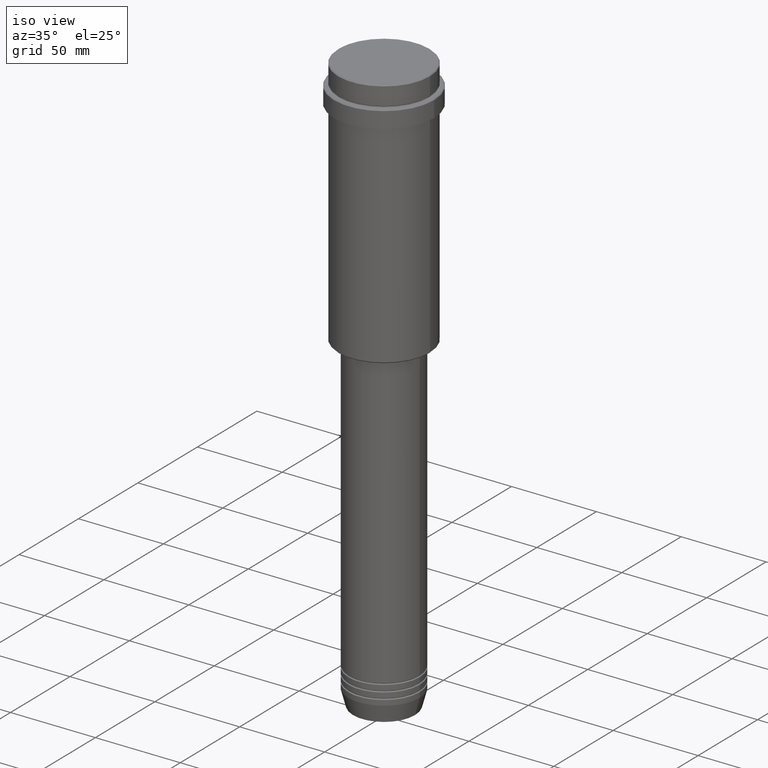
[diagram: clean part render]
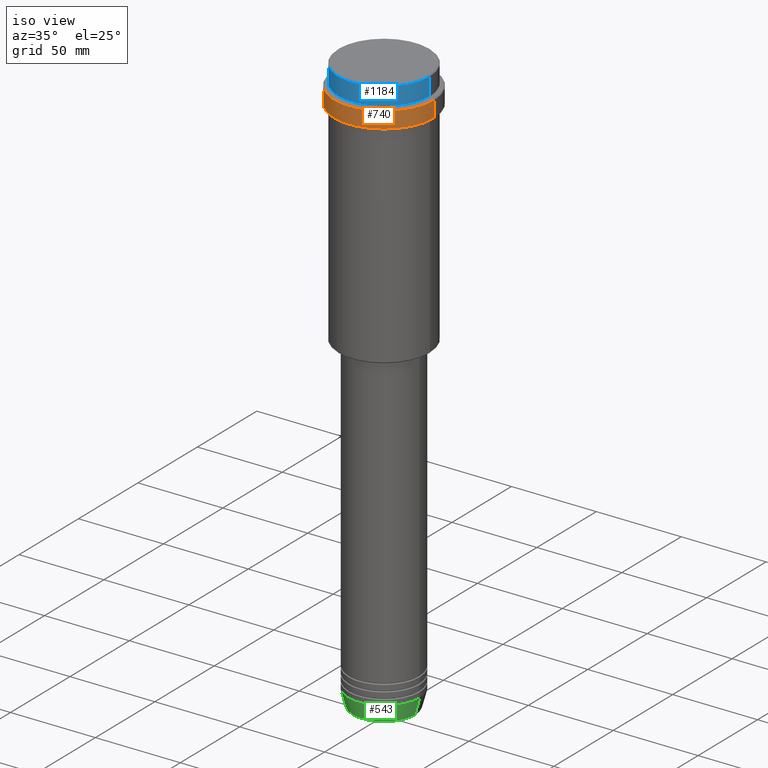
[diagram: same view with three faces highlighted in distinct colors, each labeled with its STEP entity id]
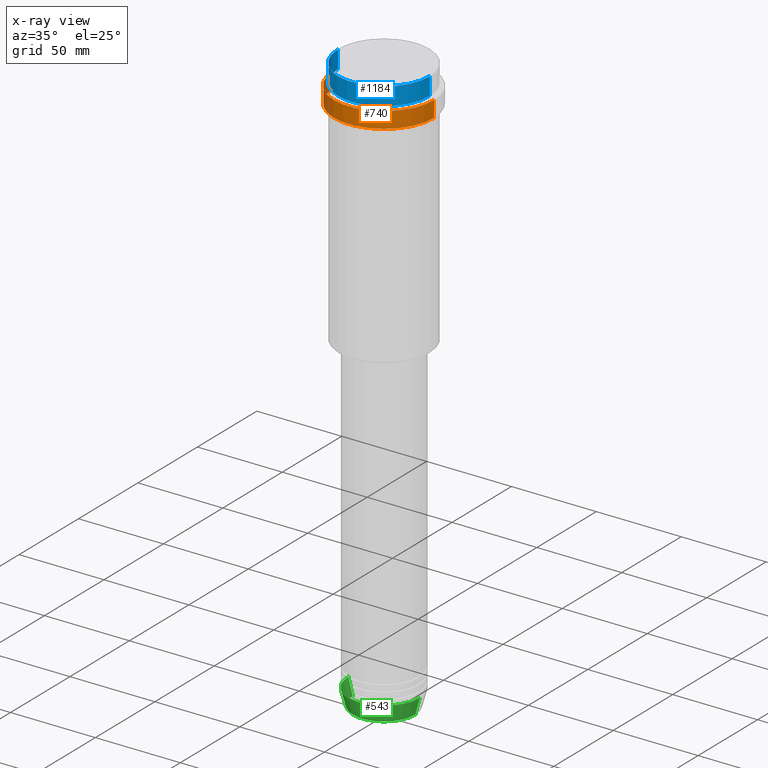
[diagram: x-ray of the same camera — body ghosted, the three highlighted faces saturated]
A machine part, iso view with three faces highlighted in distinct colors.
The next image is the same camera in x-ray (body ghosted, the three faces saturated) — at least one of them is partly hidden behind the body in this view.
Their STEP definitions:

[orange] entity #740 — the highlighted cylindrical surface (partial cylindrical patch) has radius 29.5 mm, axis along (-0, -0, 1).
#77 = DIRECTION ( 'NONE',  ( -0.000000000000000000, -0.000000000000000000, 1.000000000000000000 ) ) ;
#101 = EDGE_CURVE ( 'NONE', #205, #1254, #1217, .T. ) ;
#127 = ORIENTED_EDGE ( 'NONE', *, *, #511, .F. ) ;
#180 = ORIENTED_EDGE ( 'NONE', *, *, #101, .T. ) ;
#182 = CARTESIAN_POINT ( 'NONE',  ( 0.000000000000000000, 0.000000000000000000, 0.000000000000000000 ) ) ;
#205 = VERTEX_POINT ( 'NONE', #729 ) ;
#212 = AXIS2_PLACEMENT_3D ( 'NONE', #697, #999, #689 ) ;
#255 = VECTOR ( 'NONE', #536, 1000.000000000000000 ) ;
#263 = DIRECTION ( 'NONE',  ( -0.000000000000000000, -0.000000000000000000, 1.000000000000000000 ) ) ;
#289 = DIRECTION ( 'NONE',  ( -0.000000000000000000, -0.000000000000000000, 1.000000000000000000 ) ) ;
#297 = CARTESIAN_POINT ( 'NONE',  ( 29.50000000000000000, 0.000000000000000000, 0.000000000000000000 ) ) ;
#373 = VECTOR ( 'NONE', #289, 1000.000000000000000 ) ;
#383 = EDGE_CURVE ( 'NONE', #1197, #820, #568, .T. ) ;
#387 = DIRECTION ( 'NONE',  ( 1.000000000000000000, 0.000000000000000000, 0.000000000000000000 ) ) ;
#394 = CARTESIAN_POINT ( 'NONE',  ( -29.50000000000000000, 3.612708057484691604E-15, -12.50000000000000355 ) ) ;
#414 = CARTESIAN_POINT ( 'NONE',  ( -29.50000000000000000, 3.612708057484691604E-15, 0.000000000000000000 ) ) ;
#470 = CARTESIAN_POINT ( 'NONE',  ( 29.50000000000000000, 0.000000000000000000, -12.50000000000000355 ) ) ;
#486 = FACE_OUTER_BOUND ( 'NONE', #889, .T. ) ;
#511 = EDGE_CURVE ( 'NONE', #205, #820, #766, .T. ) ;
#512 = LINE ( 'NONE', #297, #373 ) ;
#536 = DIRECTION ( 'NONE',  ( -0.000000000000000000, -0.000000000000000000, 1.000000000000000000 ) ) ;
#568 = CIRCLE ( 'NONE', #212, 29.50000000000000000 ) ;
#689 = DIRECTION ( 'NONE',  ( 1.000000000000000000, 0.000000000000000000, 0.000000000000000000 ) ) ;
#697 = CARTESIAN_POINT ( 'NONE',  ( 0.000000000000000000, 0.000000000000000000, -12.50000000000000355 ) ) ;
#729 = CARTESIAN_POINT ( 'NONE',  ( -29.49999999999999645, 3.612708057484690815E-15, -22.00000000000000711 ) ) ;
#730 = AXIS2_PLACEMENT_3D ( 'NONE', #1054, #77, #944 ) ;
#740 = ADVANCED_FACE ( 'NONE', ( #486 ), #1037, .T. ) ;
#766 = LINE ( 'NONE', #414, #255 ) ;
#820 = VERTEX_POINT ( 'NONE', #394 ) ;
#889 = EDGE_LOOP ( 'NONE', ( #127, #180, #1008, #1208 ) ) ;
#941 = AXIS2_PLACEMENT_3D ( 'NONE', #182, #263, #387 ) ;
#944 = DIRECTION ( 'NONE',  ( 1.000000000000000000, 0.000000000000000000, 0.000000000000000000 ) ) ;
#990 = EDGE_CURVE ( 'NONE', #1254, #1197, #512, .T. ) ;
#999 = DIRECTION ( 'NONE',  ( 0.000000000000000000, 0.000000000000000000, -1.000000000000000000 ) ) ;
#1008 = ORIENTED_EDGE ( 'NONE', *, *, #990, .T. ) ;
#1037 = CYLINDRICAL_SURFACE ( 'NONE', #941, 29.50000000000000000 ) ;
#1054 = CARTESIAN_POINT ( 'NONE',  ( 0.000000000000000000, 0.000000000000000000, -22.00000000000000711 ) ) ;
#1140 = CARTESIAN_POINT ( 'NONE',  ( 29.49999999999999645, 0.000000000000000000, -22.00000000000000711 ) ) ;
#1197 = VERTEX_POINT ( 'NONE', #470 ) ;
#1208 = ORIENTED_EDGE ( 'NONE', *, *, #383, .T. ) ;
#1217 = CIRCLE ( 'NONE', #730, 29.49999999999999645 ) ;
#1254 = VERTEX_POINT ( 'NONE', #1140 ) ;

[blue] entity #1184 — the highlighted cylindrical surface (partial cylindrical patch) has radius 27 mm, axis along (-0, -0, 1).
#66 = VECTOR ( 'NONE', #187, 1000.000000000000000 ) ;
#146 = ORIENTED_EDGE ( 'NONE', *, *, #186, .F. ) ;
#184 = CARTESIAN_POINT ( 'NONE',  ( -27.00000000000000355, 3.306546357697854128E-15, -11.00000000000000178 ) ) ;
#186 = EDGE_CURVE ( 'NONE', #244, #1226, #684, .T. ) ;
#187 = DIRECTION ( 'NONE',  ( -0.000000000000000000, -0.000000000000000000, 1.000000000000000000 ) ) ;
#200 = CARTESIAN_POINT ( 'NONE',  ( 27.00000000000000355, 0.000000000000000000, 0.000000000000000000 ) ) ;
#244 = VERTEX_POINT ( 'NONE', #184 ) ;
#286 = ORIENTED_EDGE ( 'NONE', *, *, #500, .T. ) ;
#305 = EDGE_LOOP ( 'NONE', ( #146, #286, #842, #515 ) ) ;
#329 = EDGE_CURVE ( 'NONE', #702, #1226, #823, .T. ) ;
#339 = CYLINDRICAL_SURFACE ( 'NONE', #1068, 27.00000000000000355 ) ;
#349 = FACE_OUTER_BOUND ( 'NONE', #305, .T. ) ;
#399 = DIRECTION ( 'NONE',  ( 0.000000000000000000, 0.000000000000000000, -1.000000000000000000 ) ) ;
#477 = CARTESIAN_POINT ( 'NONE',  ( 27.00000000000000355, 0.000000000000000000, -11.00000000000000178 ) ) ;
#500 = EDGE_CURVE ( 'NONE', #244, #1231, #806, .T. ) ;
#515 = ORIENTED_EDGE ( 'NONE', *, *, #329, .T. ) ;
#580 = DIRECTION ( 'NONE',  ( -0.000000000000000000, -0.000000000000000000, 1.000000000000000000 ) ) ;
#675 = CARTESIAN_POINT ( 'NONE',  ( 0.000000000000000000, 0.000000000000000000, 0.000000000000000000 ) ) ;
#684 = LINE ( 'NONE', #804, #1377 ) ;
#702 = VERTEX_POINT ( 'NONE', #1229 ) ;
#716 = DIRECTION ( 'NONE',  ( 1.000000000000000000, 0.000000000000000000, 0.000000000000000000 ) ) ;
#804 = CARTESIAN_POINT ( 'NONE',  ( -27.00000000000000355, 3.306546357697854128E-15, 0.000000000000000000 ) ) ;
#806 = CIRCLE ( 'NONE', #825, 27.00000000000000355 ) ;
#823 = CIRCLE ( 'NONE', #1378, 27.00000000000000355 ) ;
#825 = AXIS2_PLACEMENT_3D ( 'NONE', #1094, #1206, #841 ) ;
#841 = DIRECTION ( 'NONE',  ( 1.000000000000000000, 0.000000000000000000, 0.000000000000000000 ) ) ;
#842 = ORIENTED_EDGE ( 'NONE', *, *, #1394, .T. ) ;
#879 = DIRECTION ( 'NONE',  ( -0.000000000000000000, -0.000000000000000000, 1.000000000000000000 ) ) ;
#1052 = LINE ( 'NONE', #200, #66 ) ;
#1068 = AXIS2_PLACEMENT_3D ( 'NONE', #675, #879, #1219 ) ;
#1094 = CARTESIAN_POINT ( 'NONE',  ( 0.000000000000000000, 0.000000000000000000, -11.00000000000000178 ) ) ;
#1184 = ADVANCED_FACE ( 'NONE', ( #349 ), #339, .T. ) ;
#1206 = DIRECTION ( 'NONE',  ( -0.000000000000000000, -0.000000000000000000, 1.000000000000000000 ) ) ;
#1219 = DIRECTION ( 'NONE',  ( 1.000000000000000000, 0.000000000000000000, 0.000000000000000000 ) ) ;
#1226 = VERTEX_POINT ( 'NONE', #1240 ) ;
#1229 = CARTESIAN_POINT ( 'NONE',  ( 27.00000000000000355, 0.000000000000000000, -0.4999999999999241163 ) ) ;
#1231 = VERTEX_POINT ( 'NONE', #477 ) ;
#1238 = CARTESIAN_POINT ( 'NONE',  ( 0.000000000000000000, 0.000000000000000000, -0.4999999999999241163 ) ) ;
#1240 = CARTESIAN_POINT ( 'NONE',  ( -27.00000000000000355, 3.306546357697854128E-15, -0.4999999999999241163 ) ) ;
#1377 = VECTOR ( 'NONE', #580, 1000.000000000000000 ) ;
#1378 = AXIS2_PLACEMENT_3D ( 'NONE', #1238, #399, #716 ) ;
#1394 = EDGE_CURVE ( 'NONE', #1231, #702, #1052, .T. ) ;

[green] entity #543 — the highlighted conical surface has half-angle 15 deg.
#4 = VERTEX_POINT ( 'NONE', #1080 ) ;
#5 = DIRECTION ( 'NONE',  ( -0.000000000000000000, -0.000000000000000000, 1.000000000000000000 ) ) ;
#38 = AXIS2_PLACEMENT_3D ( 'NONE', #1348, #604, #808 ) ;
#52 = CARTESIAN_POINT ( 'NONE',  ( 21.00000000000000000, 0.000000000000000000, -333.0000000000000000 ) ) ;
#160 = LINE ( 'NONE', #52, #258 ) ;
#164 = ORIENTED_EDGE ( 'NONE', *, *, #631, .F. ) ;
#242 = VERTEX_POINT ( 'NONE', #607 ) ;
#251 = CARTESIAN_POINT ( 'NONE',  ( 18.41980749484383750, 0.000000000000000000, -342.6294095225512706 ) ) ;
#258 = VECTOR ( 'NONE', #1153, 1000.000000000000114 ) ;
#273 = EDGE_CURVE ( 'NONE', #390, #610, #544, .T. ) ;
#280 = DIRECTION ( 'NONE',  ( 1.000000000000000000, 0.000000000000000000, 0.000000000000000000 ) ) ;
#298 = AXIS2_PLACEMENT_3D ( 'NONE', #419, #308, #280 ) ;
#308 = DIRECTION ( 'NONE',  ( -0.000000000000000000, -0.000000000000000000, 1.000000000000000000 ) ) ;
#357 = LINE ( 'NONE', #652, #484 ) ;
#390 = VERTEX_POINT ( 'NONE', #949 ) ;
#415 = CONICAL_SURFACE ( 'NONE', #1064, 21.00000000000000000, 0.2617993877991499074 ) ;
#419 = CARTESIAN_POINT ( 'NONE',  ( 0.000000000000000000, 0.000000000000000000, -342.6294095225512706 ) ) ;
#424 = ORIENTED_EDGE ( 'NONE', *, *, #273, .T. ) ;
#451 = DIRECTION ( 'NONE',  ( -0.2588190451025211836, 3.169619151431770488E-17, 0.9659258262890680902 ) ) ;
#484 = VECTOR ( 'NONE', #451, 1000.000000000000114 ) ;
#543 = ADVANCED_FACE ( 'NONE', ( #980 ), #415, .T. ) ;
#544 = CIRCLE ( 'NONE', #298, 18.41980749484383750 ) ;
#604 = DIRECTION ( 'NONE',  ( -0.000000000000000000, -0.000000000000000000, 1.000000000000000000 ) ) ;
#607 = CARTESIAN_POINT ( 'NONE',  ( 21.00000000000000000, 0.000000000000000000, -333.0000000000000000 ) ) ;
#610 = VERTEX_POINT ( 'NONE', #251 ) ;
#631 = EDGE_CURVE ( 'NONE', #390, #4, #357, .T. ) ;
#643 = CIRCLE ( 'NONE', #38, 21.00000000000000000 ) ;
#652 = CARTESIAN_POINT ( 'NONE',  ( -21.00000000000000000, 2.571758278209441661E-15, -333.0000000000000000 ) ) ;
#657 = ORIENTED_EDGE ( 'NONE', *, *, #1210, .F. ) ;
#745 = CARTESIAN_POINT ( 'NONE',  ( 0.000000000000000000, 0.000000000000000000, -333.0000000000000000 ) ) ;
#808 = DIRECTION ( 'NONE',  ( 1.000000000000000000, 0.000000000000000000, 0.000000000000000000 ) ) ;
#949 = CARTESIAN_POINT ( 'NONE',  ( -18.41980749484383750, 2.413767053578267458E-15, -342.6294095225512706 ) ) ;
#980 = FACE_OUTER_BOUND ( 'NONE', #1339, .T. ) ;
#1064 = AXIS2_PLACEMENT_3D ( 'NONE', #745, #5, #1183 ) ;
#1078 = ORIENTED_EDGE ( 'NONE', *, *, #1190, .T. ) ;
#1080 = CARTESIAN_POINT ( 'NONE',  ( -21.00000000000000000, 2.571758278209441661E-15, -333.0000000000000000 ) ) ;
#1153 = DIRECTION ( 'NONE',  ( 0.2588190451025211836, 0.000000000000000000, 0.9659258262890680902 ) ) ;
#1183 = DIRECTION ( 'NONE',  ( 1.000000000000000000, 0.000000000000000000, 0.000000000000000000 ) ) ;
#1190 = EDGE_CURVE ( 'NONE', #610, #242, #160, .T. ) ;
#1210 = EDGE_CURVE ( 'NONE', #4, #242, #643, .T. ) ;
#1339 = EDGE_LOOP ( 'NONE', ( #164, #424, #1078, #657 ) ) ;
#1348 = CARTESIAN_POINT ( 'NONE',  ( 0.000000000000000000, 0.000000000000000000, -333.0000000000000000 ) ) ;